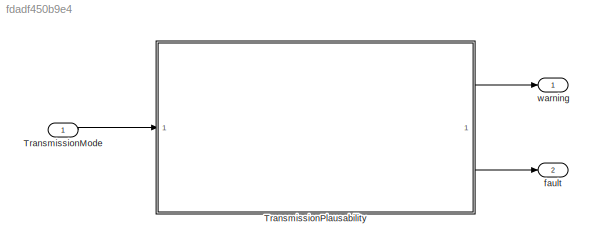
MODEL slx_fdadf450b9e4
KIND model
CONFIG AbsTol = auto
CONFIG EnableMultiTasking = on
CONFIG FixedStep = 0.1
CONFIG MaxStep = auto
CONFIG MinStep = auto
CONFIG RelTol = 1e-3
CONFIG SampleTimeConstraint = Unconstrained
CONFIG SolverName = FixedStepAuto
CONFIG StartTime = 0.0
CONFIG StopTime = 20
BLOCK [Inport] TransmissionMode
  OutDataTypeStr = Enum: TransmissionState
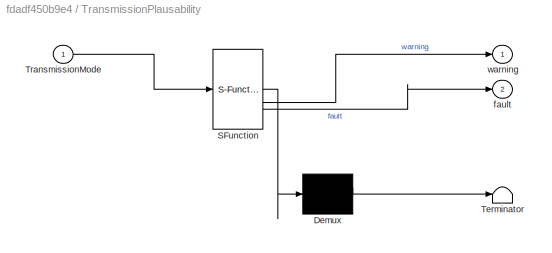
BLOCK [SubSystem] TransmissionPlausability
  ErrorFcn = Stateflow.Translate.translate
  PermitHierarchicalResolution = ExplicitOnly
  SFBlockType = MATLAB Function
  TreatAsAtomicUnit = on
BLOCK [Demux] TransmissionPlausability/ Demux 
  Outputs = 1
BLOCK [S-Function] TransmissionPlausability/ SFunction 
  EnableBusSupport = on
  FunctionName = sf_sfun
  PortCounts = [1 3]
  SFcnIsStateOwnerBlock = off
  SFunctionDeploymentMode = off
  Tag = Stateflow S-Function 2
BLOCK [Terminator] TransmissionPlausability/ Terminator 
BLOCK [Inport] TransmissionPlausability/TransmissionMode
BLOCK [Outport] TransmissionPlausability/fault
  Port = 2
BLOCK [Outport] TransmissionPlausability/warning
BLOCK [Outport] fault
  Port = 2
BLOCK [Outport] warning
LINE TransmissionMode:1 -> TransmissionPlausability:1
LINE TransmissionPlausability:1 -> warning:1
LINE TransmissionPlausability:2 -> fault:1
CHART TransmissionPlausability states=1 transitions=1
  STATE_LABEL 'eML_blk_kernel()'
  STATE_LABEL 'SCRIPT:\nfunction [warning, fault] = TransmissionPlausability(TransmissionMode)\n\n% initialization\nwarning = boolean(0);\nfault = boolean(0);\n\nvalidModes = [ ...\n    TransmissionState.Park, ...\n    TransmissionState.Reverse, ...\n    TransmissionState.Neutral, ...\n    TransmissionState.Drive, ...\n    TransmissionState.Brake ...\n];\n\nif ~any(TransmissionMode == validModes)\n    warning = boolean(1);\n    ...<+29ch>'
CHART  states=0 transitions=0
